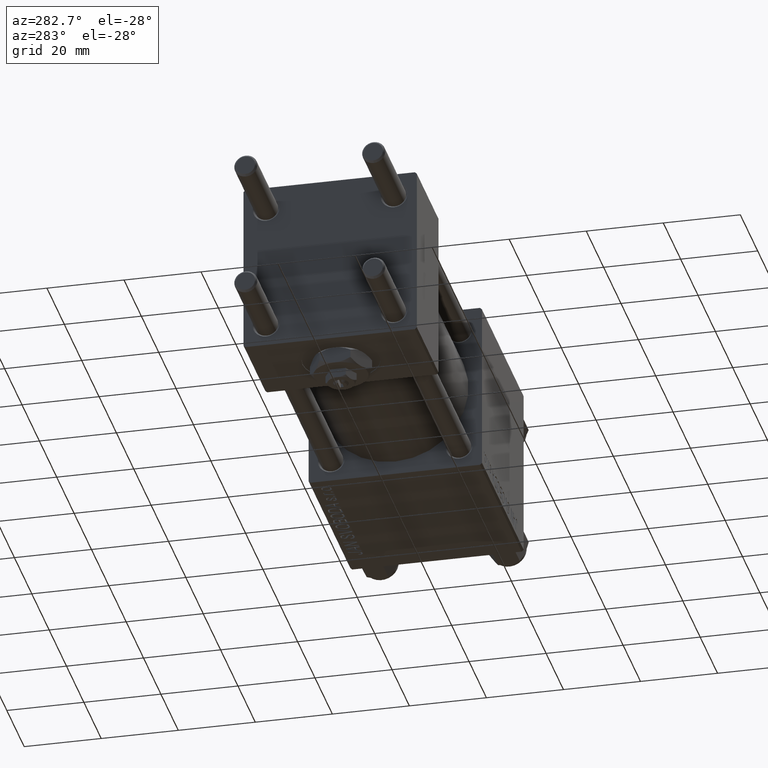
[diagram: clean part render]
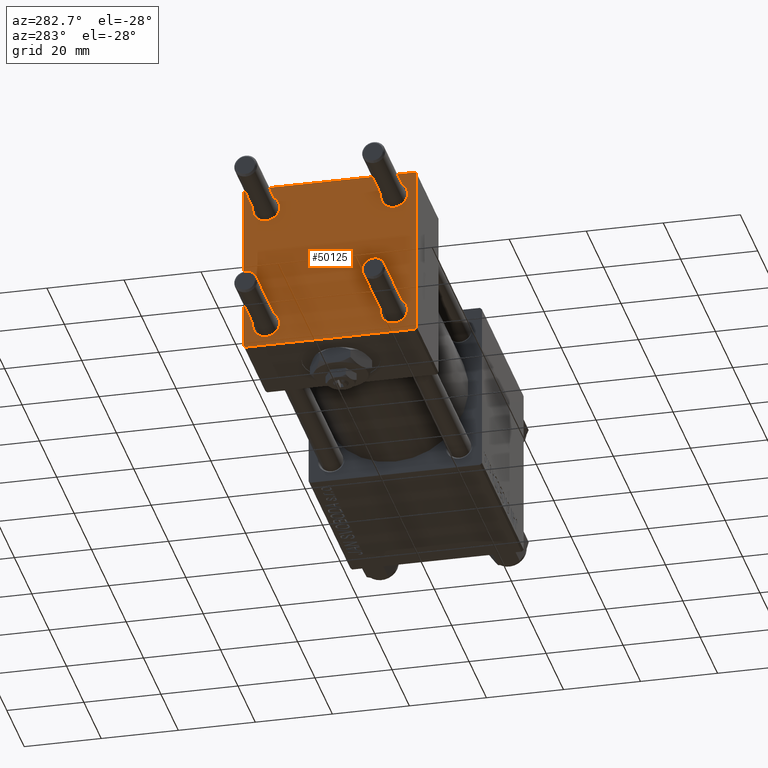
[diagram: same view with one face highlighted and labeled with its STEP entity id]
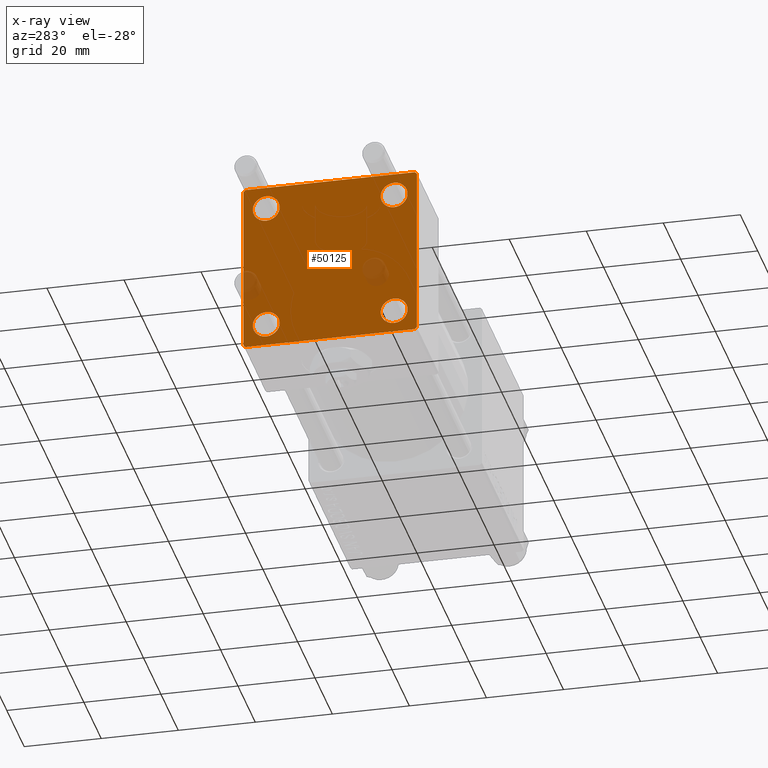
[diagram: x-ray of the same camera — body ghosted, the highlighted face saturated]
A machine part, auxiliary view. The second image highlights one B-rep face of the part: STEP entity #50125.
The next image is the same camera in x-ray: the body ghosted, the highlighted face saturated — about 4% of this face is hidden behind the body in this view.
In plain terms, the highlighted planar face has unit normal (-1, 0, 0).
Its self-contained STEP definition (entity closure, byte-faithful):
#882 = VERTEX_POINT ( 'NONE', #41940 ) ;
#1048 = AXIS2_PLACEMENT_3D ( 'NONE', #30133, #47114, #26212 ) ;
#1330 = EDGE_LOOP ( 'NONE', ( #34337, #14089 ) ) ;
#1491 = EDGE_CURVE ( 'NONE', #40131, #39775, #10919, .T. ) ;
#1531 = CARTESIAN_POINT ( 'NONE',  ( 0.000000000000000000, 16.59999999999999787, 16.60000000000000497 ) ) ;
#1784 = VECTOR ( 'NONE', #33822, 1000.000000000000000 ) ;
#2280 = DIRECTION ( 'NONE',  ( 1.000000000000000000, -0.000000000000000000, 0.000000000000000000 ) ) ;
#2440 = EDGE_LOOP ( 'NONE', ( #18047, #46130 ) ) ;
#2652 = EDGE_CURVE ( 'NONE', #882, #41268, #17870, .T. ) ;
#3145 = CARTESIAN_POINT ( 'NONE',  ( 0.000000000000000000, 16.59999999999999787, -13.10000000000000675 ) ) ;
#3194 = VERTEX_POINT ( 'NONE', #3145 ) ;
#3494 = FACE_BOUND ( 'NONE', #1330, .T. ) ;
#3722 = VECTOR ( 'NONE', #15499, 1000.000000000000000 ) ;
#3739 = DIRECTION ( 'NONE',  ( -0.000000000000000000, 0.000000000000000000, 1.000000000000000000 ) ) ;
#4467 = CIRCLE ( 'NONE', #33727, 3.499999999999996003 ) ;
#4474 = LINE ( 'NONE', #47407, #33234 ) ;
#5157 = DIRECTION ( 'NONE',  ( 0.000000000000000000, 0.000000000000000000, 1.000000000000000000 ) ) ;
#5622 = DIRECTION ( 'NONE',  ( 0.000000000000000000, 0.000000000000000000, 1.000000000000000000 ) ) ;
#5658 = DIRECTION ( 'NONE',  ( 0.000000000000000000, 0.000000000000000000, 1.000000000000000000 ) ) ;
#6217 = AXIS2_PLACEMENT_3D ( 'NONE', #15451, #7354, #11018 ) ;
#6646 = LINE ( 'NONE', #22618, #39911 ) ;
#7354 = DIRECTION ( 'NONE',  ( 1.000000000000000000, -0.000000000000000000, 0.000000000000000000 ) ) ;
#8135 = CARTESIAN_POINT ( 'NONE',  ( 0.000000000000000000, -16.59999999999999076, 13.10000000000001030 ) ) ;
#9390 = CARTESIAN_POINT ( 'NONE',  ( 0.000000000000000000, 22.50000000000000000, 21.99999999999999645 ) ) ;
#9937 = VERTEX_POINT ( 'NONE', #21528 ) ;
#9971 = EDGE_CURVE ( 'NONE', #18883, #23393, #4467, .T. ) ;
#10351 = CIRCLE ( 'NONE', #1048, 3.499999999999996003 ) ;
#10540 = VERTEX_POINT ( 'NONE', #14679 ) ;
#10547 = EDGE_CURVE ( 'NONE', #43675, #3194, #12051, .T. ) ;
#10653 = DIRECTION ( 'NONE',  ( 0.000000000000000000, 0.000000000000000000, -1.000000000000000000 ) ) ;
#10748 = CARTESIAN_POINT ( 'NONE',  ( 0.000000000000000000, 16.59999999999999787, 13.10000000000000675 ) ) ;
#10919 = CIRCLE ( 'NONE', #15924, 3.499999999999996003 ) ;
#11018 = DIRECTION ( 'NONE',  ( 0.000000000000000000, 0.000000000000000000, 1.000000000000000000 ) ) ;
#11213 = CIRCLE ( 'NONE', #40439, 3.499999999999996003 ) ;
#12051 = CIRCLE ( 'NONE', #6217, 3.499999999999996003 ) ;
#12375 = CARTESIAN_POINT ( 'NONE',  ( 0.000000000000000000, -16.59999999999999076, -13.10000000000001030 ) ) ;
#13629 = VERTEX_POINT ( 'NONE', #23675 ) ;
#14089 = ORIENTED_EDGE ( 'NONE', *, *, #35939, .T. ) ;
#14679 = CARTESIAN_POINT ( 'NONE',  ( 0.000000000000000000, 21.99999999999999289, -22.49999999999999645 ) ) ;
#14976 = DIRECTION ( 'NONE',  ( 1.000000000000000000, -0.000000000000000000, 0.000000000000000000 ) ) ;
#14983 = CARTESIAN_POINT ( 'NONE',  ( 0.000000000000000000, 16.59999999999999787, -20.10000000000000142 ) ) ;
#15451 = CARTESIAN_POINT ( 'NONE',  ( 0.000000000000000000, 16.59999999999999787, -16.60000000000000497 ) ) ;
#15499 = DIRECTION ( 'NONE',  ( 0.000000000000000000, -1.000000000000000000, -7.709882115452476934E-17 ) ) ;
#15852 = CARTESIAN_POINT ( 'NONE',  ( 0.000000000000000000, 22.24999999999999645, 22.24999999999999645 ) ) ;
#15924 = AXIS2_PLACEMENT_3D ( 'NONE', #36782, #40712, #5658 ) ;
#15945 = EDGE_LOOP ( 'NONE', ( #42949, #35174, #46011, #24542, #29963, #42703, #50179, #33564 ) ) ;
#16617 = VECTOR ( 'NONE', #31817, 1000.000000000000114 ) ;
#17870 = LINE ( 'NONE', #40441, #1784 ) ;
#17931 = CIRCLE ( 'NONE', #18744, 3.499999999999996003 ) ;
#18047 = ORIENTED_EDGE ( 'NONE', *, *, #34581, .T. ) ;
#18193 = VECTOR ( 'NONE', #44144, 1000.000000000000000 ) ;
#18535 = LINE ( 'NONE', #22736, #28528 ) ;
#18620 = EDGE_CURVE ( 'NONE', #38571, #41268, #6646, .T. ) ;
#18744 = AXIS2_PLACEMENT_3D ( 'NONE', #29233, #2280, #5157 ) ;
#18883 = VERTEX_POINT ( 'NONE', #30385 ) ;
#19037 = CIRCLE ( 'NONE', #34083, 3.499999999999996003 ) ;
#19431 = LINE ( 'NONE', #51346, #3722 ) ;
#19452 = DIRECTION ( 'NONE',  ( -1.000000000000000000, 0.000000000000000000, -0.000000000000000000 ) ) ;
#20486 = CARTESIAN_POINT ( 'NONE',  ( 0.000000000000000000, 0.000000000000000000, 0.000000000000000000 ) ) ;
#20641 = EDGE_LOOP ( 'NONE', ( #51651, #24177 ) ) ;
#21528 = CARTESIAN_POINT ( 'NONE',  ( 0.000000000000000000, 21.99999999999999289, 22.50000000000000355 ) ) ;
#21616 = EDGE_LOOP ( 'NONE', ( #22329, #38250 ) ) ;
#22147 = EDGE_CURVE ( 'NONE', #51701, #41493, #19037, .T. ) ;
#22306 = CARTESIAN_POINT ( 'NONE',  ( 0.000000000000000000, -16.59999999999999076, -16.60000000000000853 ) ) ;
#22329 = ORIENTED_EDGE ( 'NONE', *, *, #40183, .T. ) ;
#22618 = CARTESIAN_POINT ( 'NONE',  ( 0.000000000000000000, -22.50000000000000000, 22.50000000000000000 ) ) ;
#22736 = CARTESIAN_POINT ( 'NONE',  ( -0.000000000000000000, -22.24999999999984013, 22.25000000000015277 ) ) ;
#22845 = CARTESIAN_POINT ( 'NONE',  ( 0.000000000000000000, 16.59999999999999787, -16.60000000000000497 ) ) ;
#23393 = VERTEX_POINT ( 'NONE', #12375 ) ;
#23675 = CARTESIAN_POINT ( 'NONE',  ( 0.000000000000000000, 22.50000000000000000, -21.99999999999996803 ) ) ;
#23723 = CARTESIAN_POINT ( 'NONE',  ( 0.000000000000000000, 22.50000000000000000, 22.50000000000000355 ) ) ;
#24177 = ORIENTED_EDGE ( 'NONE', *, *, #10547, .T. ) ;
#24419 = FACE_BOUND ( 'NONE', #21616, .T. ) ;
#24542 = ORIENTED_EDGE ( 'NONE', *, *, #2652, .T. ) ;
#25092 = DIRECTION ( 'NONE',  ( 0.000000000000000000, 0.000000000000000000, 1.000000000000000000 ) ) ;
#25529 = VECTOR ( 'NONE', #10653, 1000.000000000000000 ) ;
#26118 = CARTESIAN_POINT ( 'NONE',  ( 0.000000000000000000, -22.50000000000000000, -21.99999999999997158 ) ) ;
#26212 = DIRECTION ( 'NONE',  ( 0.000000000000000000, 0.000000000000000000, 1.000000000000000000 ) ) ;
#27187 = CARTESIAN_POINT ( 'NONE',  ( 0.000000000000000000, 22.25000000000014566, -22.24999999999984013 ) ) ;
#27318 = FACE_BOUND ( 'NONE', #20641, .T. ) ;
#28298 = DIRECTION ( 'NONE',  ( 0.000000000000000000, -1.000000000000000000, -2.312964634635742957E-16 ) ) ;
#28528 = VECTOR ( 'NONE', #50449, 999.9999999999998863 ) ;
#29233 = CARTESIAN_POINT ( 'NONE',  ( 0.000000000000000000, -16.59999999999999076, -16.60000000000000853 ) ) ;
#29963 = ORIENTED_EDGE ( 'NONE', *, *, #18620, .F. ) ;
#30133 = CARTESIAN_POINT ( 'NONE',  ( 0.000000000000000000, -16.59999999999999076, 16.60000000000000853 ) ) ;
#30385 = CARTESIAN_POINT ( 'NONE',  ( 0.000000000000000000, -16.59999999999999076, -20.10000000000000497 ) ) ;
#31672 = EDGE_CURVE ( 'NONE', #38571, #49736, #18535, .T. ) ;
#31817 = DIRECTION ( 'NONE',  ( 0.000000000000000000, 0.7071067811865474617, -0.7071067811865474617 ) ) ;
#32240 = CIRCLE ( 'NONE', #40554, 3.499999999999996003 ) ;
#33234 = VECTOR ( 'NONE', #28298, 1000.000000000000000 ) ;
#33349 = DIRECTION ( 'NONE',  ( 1.000000000000000000, -0.000000000000000000, 0.000000000000000000 ) ) ;
#33350 = AXIS2_PLACEMENT_3D ( 'NONE', #20486, #19452, #3739 ) ;
#33564 = ORIENTED_EDGE ( 'NONE', *, *, #49107, .T. ) ;
#33727 = AXIS2_PLACEMENT_3D ( 'NONE', #22306, #49771, #37985 ) ;
#33822 = DIRECTION ( 'NONE',  ( 0.000000000000000000, -0.7071067811865426878, 0.7071067811865524577 ) ) ;
#34083 = AXIS2_PLACEMENT_3D ( 'NONE', #41195, #33349, #5622 ) ;
#34337 = ORIENTED_EDGE ( 'NONE', *, *, #1491, .T. ) ;
#34581 = EDGE_CURVE ( 'NONE', #41493, #51701, #10351, .T. ) ;
#35174 = ORIENTED_EDGE ( 'NONE', *, *, #47067, .T. ) ;
#35779 = LINE ( 'NONE', #27187, #18193 ) ;
#35939 = EDGE_CURVE ( 'NONE', #39775, #40131, #11213, .T. ) ;
#36427 = FACE_OUTER_BOUND ( 'NONE', #15945, .T. ) ;
#36510 = CARTESIAN_POINT ( 'NONE',  ( 0.000000000000000000, -16.59999999999999076, 20.10000000000000853 ) ) ;
#36782 = CARTESIAN_POINT ( 'NONE',  ( 0.000000000000000000, 16.59999999999999787, 16.60000000000000497 ) ) ;
#37985 = DIRECTION ( 'NONE',  ( 0.000000000000000000, 0.000000000000000000, 1.000000000000000000 ) ) ;
#38250 = ORIENTED_EDGE ( 'NONE', *, *, #9971, .T. ) ;
#38571 = VERTEX_POINT ( 'NONE', #44823 ) ;
#38752 = EDGE_CURVE ( 'NONE', #3194, #43675, #32240, .T. ) ;
#39328 = FACE_BOUND ( 'NONE', #2440, .T. ) ;
#39491 = EDGE_CURVE ( 'NONE', #9937, #49736, #19431, .T. ) ;
#39775 = VERTEX_POINT ( 'NONE', #10748 ) ;
#39911 = VECTOR ( 'NONE', #42991, 1000.000000000000000 ) ;
#40131 = VERTEX_POINT ( 'NONE', #46799 ) ;
#40183 = EDGE_CURVE ( 'NONE', #23393, #18883, #17931, .T. ) ;
#40358 = PLANE ( 'NONE',  #33350 ) ;
#40439 = AXIS2_PLACEMENT_3D ( 'NONE', #1531, #41281, #25092 ) ;
#40441 = CARTESIAN_POINT ( 'NONE',  ( 0.000000000000000000, -22.25000000000014566, -22.24999999999984013 ) ) ;
#40554 = AXIS2_PLACEMENT_3D ( 'NONE', #22845, #14976, #46905 ) ;
#40712 = DIRECTION ( 'NONE',  ( 1.000000000000000000, -0.000000000000000000, 0.000000000000000000 ) ) ;
#41195 = CARTESIAN_POINT ( 'NONE',  ( 0.000000000000000000, -16.59999999999999076, 16.60000000000000853 ) ) ;
#41268 = VERTEX_POINT ( 'NONE', #26118 ) ;
#41281 = DIRECTION ( 'NONE',  ( 1.000000000000000000, -0.000000000000000000, 0.000000000000000000 ) ) ;
#41417 = EDGE_CURVE ( 'NONE', #43344, #13629, #51700, .T. ) ;
#41493 = VERTEX_POINT ( 'NONE', #36510 ) ;
#41940 = CARTESIAN_POINT ( 'NONE',  ( 0.000000000000000000, -21.99999999999997158, -22.50000000000000711 ) ) ;
#42703 = ORIENTED_EDGE ( 'NONE', *, *, #31672, .T. ) ;
#42949 = ORIENTED_EDGE ( 'NONE', *, *, #41417, .T. ) ;
#42991 = DIRECTION ( 'NONE',  ( 0.000000000000000000, 0.000000000000000000, -1.000000000000000000 ) ) ;
#43344 = VERTEX_POINT ( 'NONE', #9390 ) ;
#43675 = VERTEX_POINT ( 'NONE', #14983 ) ;
#44144 = DIRECTION ( 'NONE',  ( -0.000000000000000000, -0.7071067811865426878, -0.7071067811865524577 ) ) ;
#44823 = CARTESIAN_POINT ( 'NONE',  ( 0.000000000000000000, -22.50000000000000000, 22.00000000000000000 ) ) ;
#46011 = ORIENTED_EDGE ( 'NONE', *, *, #46908, .T. ) ;
#46130 = ORIENTED_EDGE ( 'NONE', *, *, #22147, .T. ) ;
#46799 = CARTESIAN_POINT ( 'NONE',  ( 0.000000000000000000, 16.59999999999999787, 20.10000000000000142 ) ) ;
#46905 = DIRECTION ( 'NONE',  ( 0.000000000000000000, 0.000000000000000000, 1.000000000000000000 ) ) ;
#46908 = EDGE_CURVE ( 'NONE', #10540, #882, #4474, .T. ) ;
#47067 = EDGE_CURVE ( 'NONE', #13629, #10540, #35779, .T. ) ;
#47114 = DIRECTION ( 'NONE',  ( 1.000000000000000000, -0.000000000000000000, 0.000000000000000000 ) ) ;
#47407 = CARTESIAN_POINT ( 'NONE',  ( 0.000000000000000000, 22.50000000000000000, -22.49999999999999645 ) ) ;
#47519 = LINE ( 'NONE', #15852, #16617 ) ;
#49107 = EDGE_CURVE ( 'NONE', #9937, #43344, #47519, .T. ) ;
#49523 = CARTESIAN_POINT ( 'NONE',  ( 0.000000000000000000, -21.99999999999997868, 22.50000000000000000 ) ) ;
#49736 = VERTEX_POINT ( 'NONE', #49523 ) ;
#49771 = DIRECTION ( 'NONE',  ( 1.000000000000000000, -0.000000000000000000, 0.000000000000000000 ) ) ;
#50125 = ADVANCED_FACE ( 'NONE', ( #39328, #24419, #27318, #3494, #36427 ), #40358, .T. ) ;
#50179 = ORIENTED_EDGE ( 'NONE', *, *, #39491, .F. ) ;
#50449 = DIRECTION ( 'NONE',  ( -0.000000000000000000, 0.7071067811865525687, 0.7071067811865425767 ) ) ;
#51346 = CARTESIAN_POINT ( 'NONE',  ( 0.000000000000000000, 22.50000000000000000, 22.50000000000000355 ) ) ;
#51651 = ORIENTED_EDGE ( 'NONE', *, *, #38752, .T. ) ;
#51700 = LINE ( 'NONE', #23723, #25529 ) ;
#51701 = VERTEX_POINT ( 'NONE', #8135 ) ;